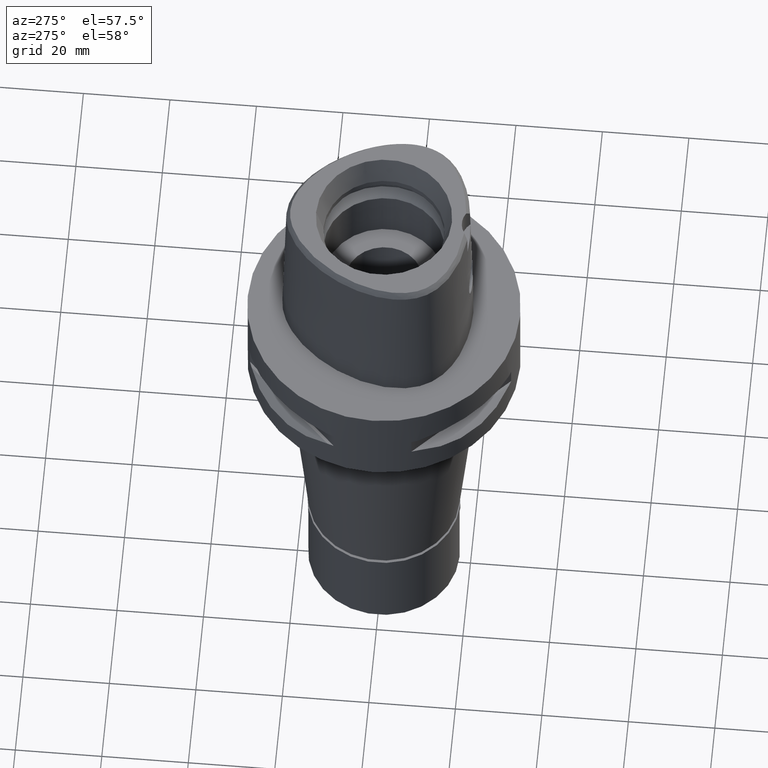
[diagram: clean part render]
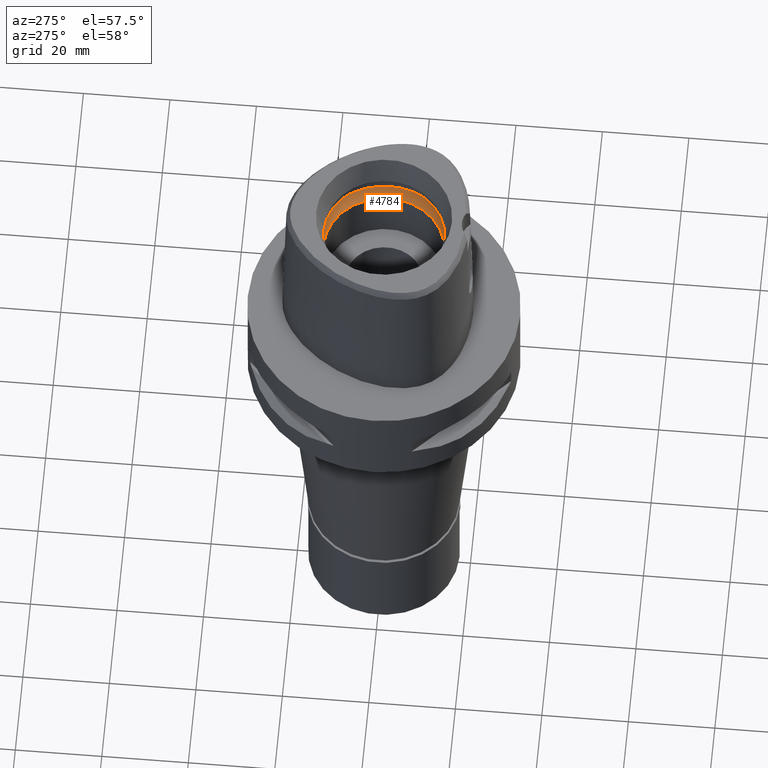
[diagram: same view with one face highlighted and labeled with its STEP entity id]
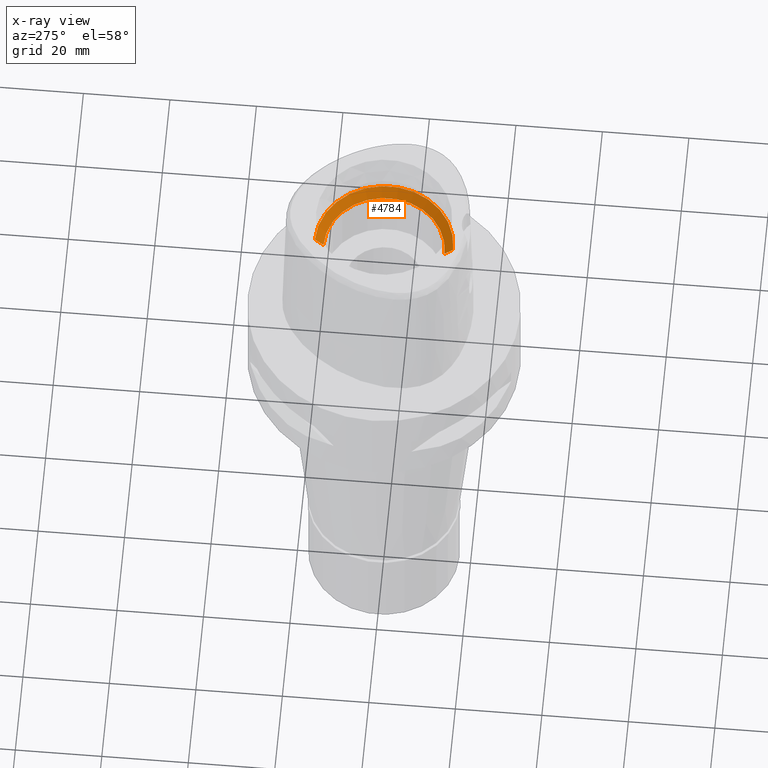
[diagram: x-ray of the same camera — body ghosted, the highlighted face saturated]
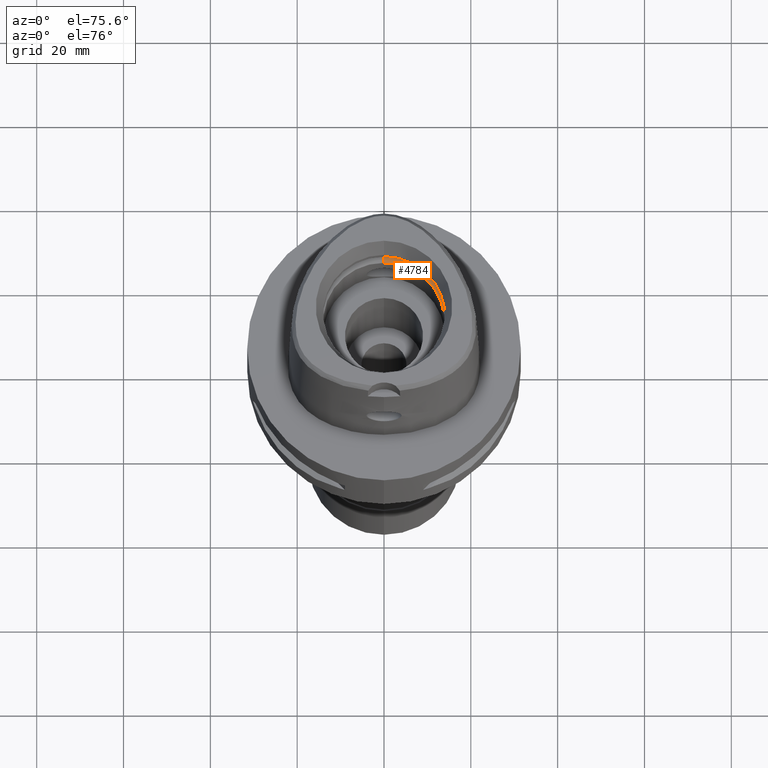
[diagram: same view with one face highlighted and labeled with its STEP entity id]
A machine part, auxiliary view. The second image highlights one B-rep face of the part: STEP entity #4784.
The next image is the same camera in x-ray: the body ghosted, the highlighted face saturated — about 0% of this face is hidden behind the body in this view.
A second angle (auxiliary view) of the same face is appended — the face is thin or edge-on in the first view.
In plain terms, the highlighted conical surface has half-angle 45 deg.
Its self-contained STEP definition (entity closure, byte-faithful):
#35 = EDGE_CURVE ( 'NONE', #1762, #4339, #3309, .T. ) ;
#131 = CARTESIAN_POINT ( 'NONE',  ( 0.0000000000000000000, 0.0000000000000000000, 26.20000000000000284 ) ) ;
#249 = CIRCLE ( 'NONE', #2114, 14.00000000000000000 ) ;
#270 = DIRECTION ( 'NONE',  ( 0.0000000000000000000, 1.000000000000000000, 0.0000000000000000000 ) ) ;
#558 = DIRECTION ( 'NONE',  ( 0.0000000000000000000, 0.0000000000000000000, 1.000000000000000000 ) ) ;
#672 = CARTESIAN_POINT ( 'NONE',  ( 0.0000000000000000000, -14.00000000000000000, 24.19999999999999929 ) ) ;
#1024 = CARTESIAN_POINT ( 'NONE',  ( 0.0000000000000000000, 14.00000000000000000, 24.19999999999999929 ) ) ;
#1063 = FACE_OUTER_BOUND ( 'NONE', #2331, .T. ) ;
#1301 = ORIENTED_EDGE ( 'NONE', *, *, #1569, .F. ) ;
#1569 = EDGE_CURVE ( 'NONE', #4339, #4931, #2926, .T. ) ;
#1658 = DIRECTION ( 'NONE',  ( 0.0000000000000000000, 1.000000000000000000, 0.0000000000000000000 ) ) ;
#1762 = VERTEX_POINT ( 'NONE', #1024 ) ;
#1772 = AXIS2_PLACEMENT_3D ( 'NONE', #4891, #558, #270 ) ;
#1838 = EDGE_CURVE ( 'NONE', #3508, #1762, #249, .T. ) ;
#2092 = DIRECTION ( 'NONE',  ( 0.0000000000000000000, 0.7071067811865474617, 0.7071067811865474617 ) ) ;
#2114 = AXIS2_PLACEMENT_3D ( 'NONE', #4923, #3803, #3115 ) ;
#2331 = EDGE_LOOP ( 'NONE', ( #1301, #2511, #3181, #3144 ) ) ;
#2511 = ORIENTED_EDGE ( 'NONE', *, *, #35, .F. ) ;
#2766 = CARTESIAN_POINT ( 'NONE',  ( 0.0000000000000000000, 16.00000000000000000, 26.20000000000000284 ) ) ;
#2926 = CIRCLE ( 'NONE', #3577, 16.00000000000000000 ) ;
#3115 = DIRECTION ( 'NONE',  ( 0.0000000000000000000, -1.000000000000000000, 0.0000000000000000000 ) ) ;
#3144 = ORIENTED_EDGE ( 'NONE', *, *, #3314, .T. ) ;
#3181 = ORIENTED_EDGE ( 'NONE', *, *, #1838, .F. ) ;
#3265 = CARTESIAN_POINT ( 'NONE',  ( 0.0000000000000000000, -16.00000000000000000, 26.20000000000000284 ) ) ;
#3309 = LINE ( 'NONE', #4843, #3978 ) ;
#3314 = EDGE_CURVE ( 'NONE', #3508, #4931, #4142, .T. ) ;
#3508 = VERTEX_POINT ( 'NONE', #4296 ) ;
#3533 = DIRECTION ( 'NONE',  ( 0.0000000000000000000, 0.0000000000000000000, -1.000000000000000000 ) ) ;
#3577 = AXIS2_PLACEMENT_3D ( 'NONE', #131, #3533, #1658 ) ;
#3798 = CONICAL_SURFACE ( 'NONE', #1772, 15.00000000000000000, 0.7853981633972997312 ) ;
#3803 = DIRECTION ( 'NONE',  ( 0.0000000000000000000, 0.0000000000000000000, 1.000000000000000000 ) ) ;
#3907 = VECTOR ( 'NONE', #4114, 1000.000000000000114 ) ;
#3978 = VECTOR ( 'NONE', #2092, 1000.000000000000114 ) ;
#4114 = DIRECTION ( 'NONE',  ( 0.0000000000000000000, -0.7071067811865474617, 0.7071067811865474617 ) ) ;
#4142 = LINE ( 'NONE', #672, #3907 ) ;
#4296 = CARTESIAN_POINT ( 'NONE',  ( 0.0000000000000000000, -14.00000000000000000, 24.19999999999999929 ) ) ;
#4339 = VERTEX_POINT ( 'NONE', #2766 ) ;
#4784 = ADVANCED_FACE ( 'NONE', ( #1063 ), #3798, .F. ) ;
#4843 = CARTESIAN_POINT ( 'NONE',  ( 0.0000000000000000000, 14.00000000000000000, 24.19999999999999929 ) ) ;
#4891 = CARTESIAN_POINT ( 'NONE',  ( 0.0000000000000000000, 0.0000000000000000000, 25.19999999999999929 ) ) ;
#4923 = CARTESIAN_POINT ( 'NONE',  ( 0.0000000000000000000, 0.0000000000000000000, 24.19999999999999929 ) ) ;
#4931 = VERTEX_POINT ( 'NONE', #3265 ) ;